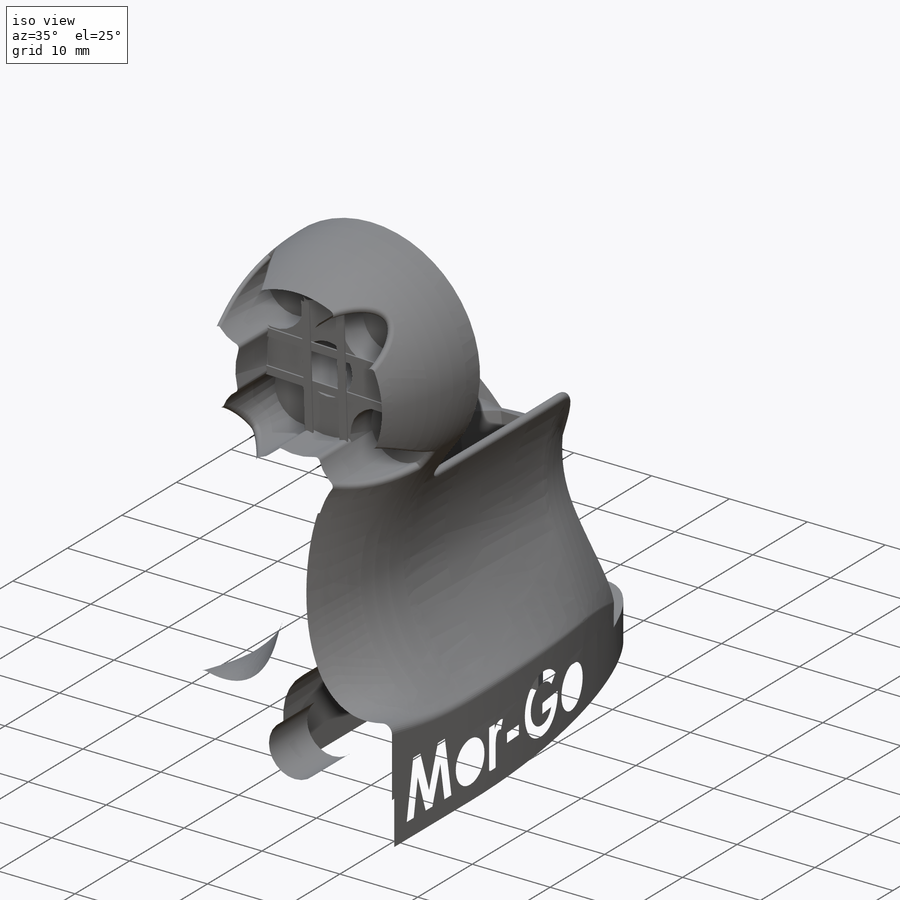
[diagram: iso view]
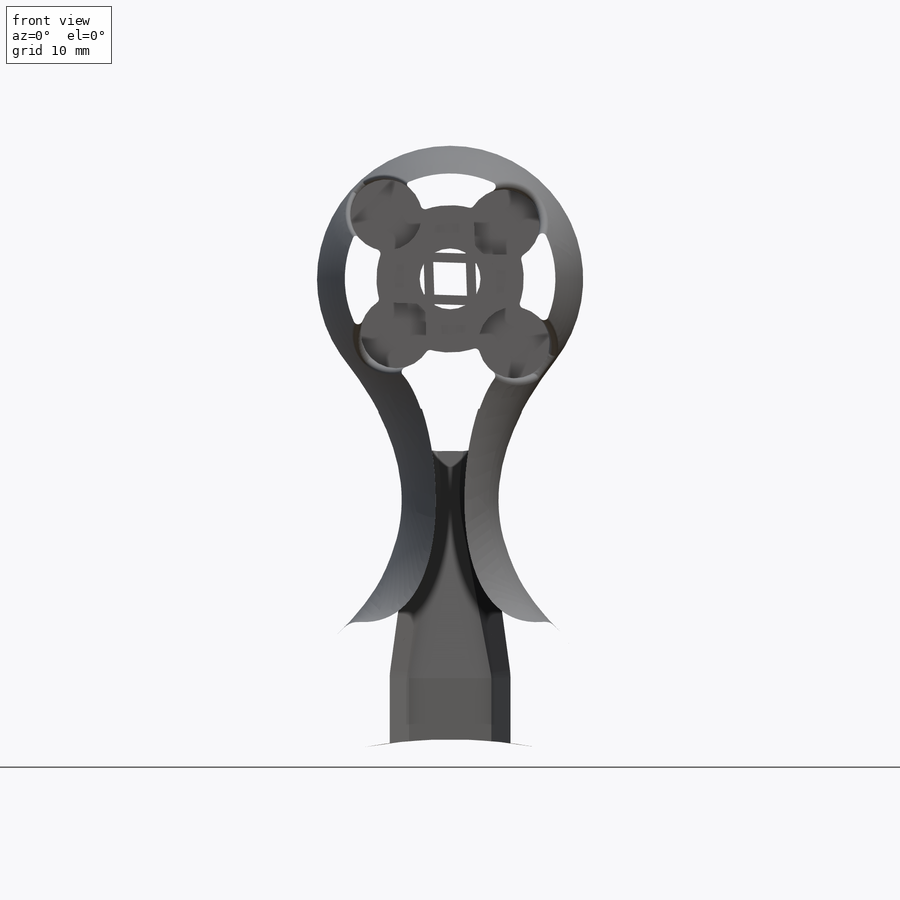
[diagram: front view]
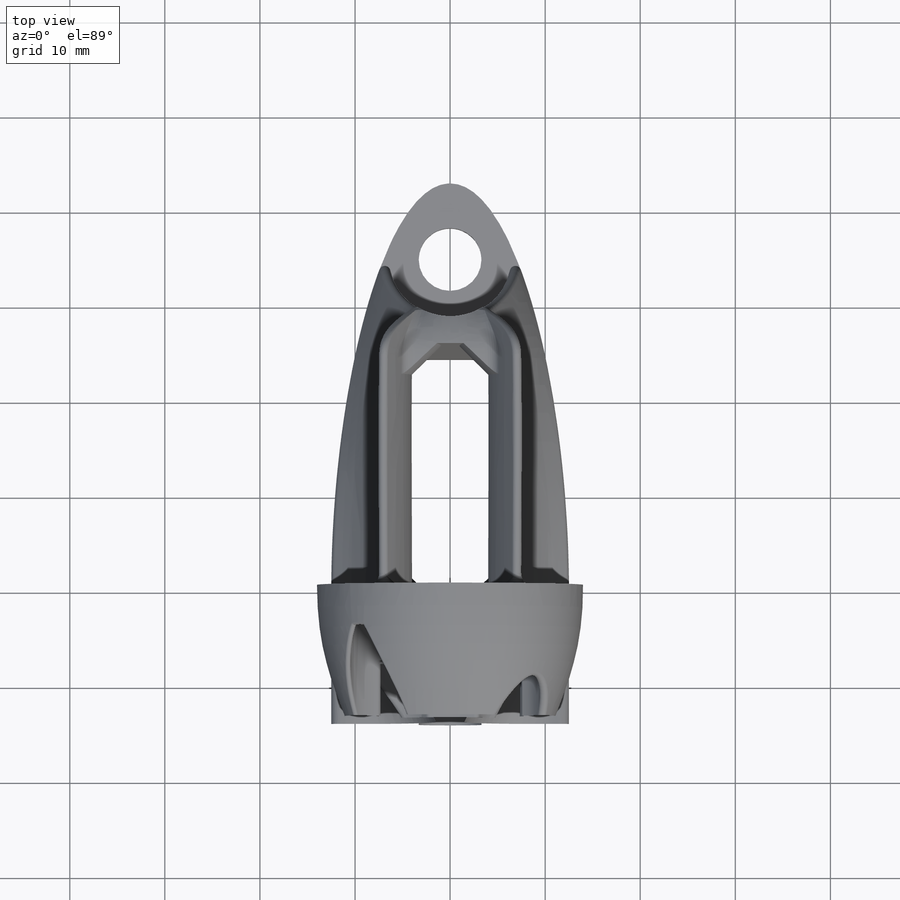
[diagram: top view]
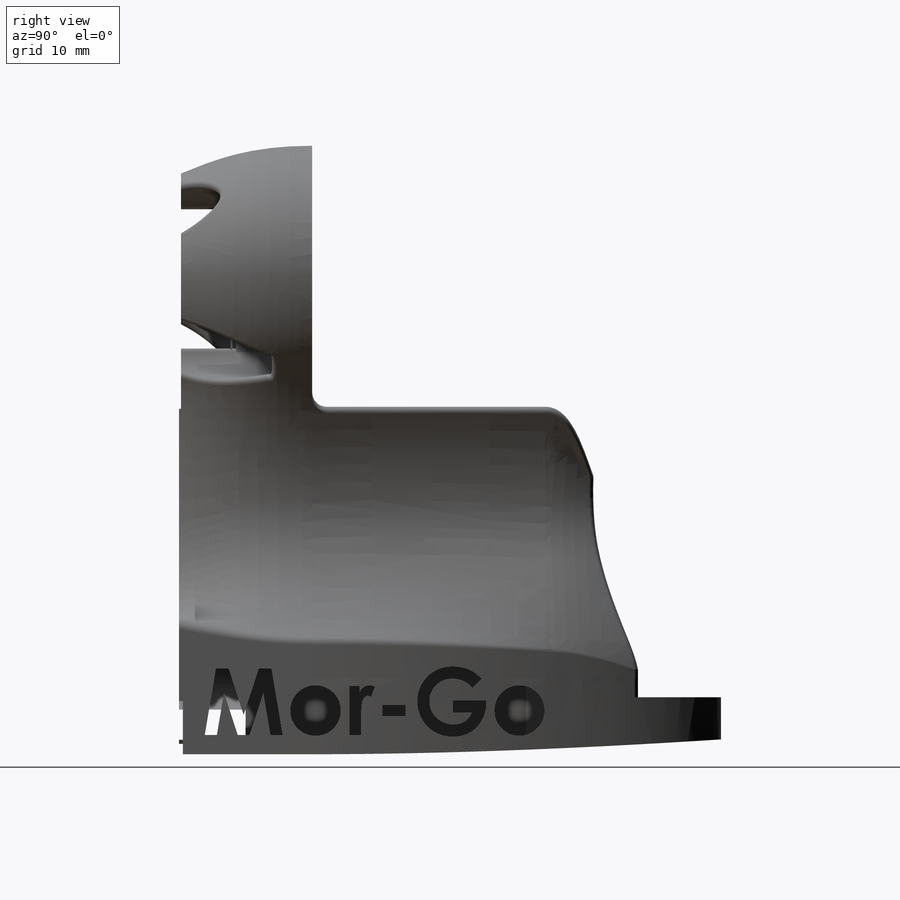
[diagram: right view]
SOLIDWORKS PART (.sldprt)
format: sldprt  version: not decoded by parser v0  size: 2,762,752 bytes
history: native  units: mm
features: sketch x32, cut_extrude x10, fillet x9, extrude x5, plane x4, sweep x4, mirror x3, surface_op x2, material x1, boolean_combine x1, chamfer x1, curve x1 (+15 scaffold rows collapsed)
feature tree (88):
  scaffold x15  (default folders/planes/origin — collapsed)
  material  "Material <not specified>"
  sketch  "Sketch1"  dims[c1.D1=28.0mm c1.D2=30.0mm c1.D5=~35.305089mm c1.D7=6.604mm c1.D10=80.0mm c2.D2=50.0mm c2.D3=25.0mm c2.D4=~10.71765mm c2.D5=~13.735526mm c3.D5=30.0deg c4.D5=10.0mm c4.D6=14.0mm c4.D8=42.0mm c4.D4=20.0mm c4.D9=20.0mm c5.D4=80.0deg]
  sketch  "Sketch2"  dims[c1.D2=3.0mm c1.D1=6.0mm c2.D2=18.0mm c2.D3=3.5mm]
  plane  "Plane1"  Offset=14mm
  sketch  "Sketch4"  dims[D1=22.0mm D4=75.2mm D2=3.0mm D3=5.0mm]
  sketch  "Sketch5"  dims[c1.D1=~3.373684mm c1.D2=~3.569905mm c1.D3=3.4mm c2.D1=19.0mm c2.D2=16.0mm c2.D3=16.0mm c3.D3=45.0deg c4.D3=~35.086547mm c5.D3=60.0deg c5.D4=19.0mm c6.D4=45.0deg]
  cut_extrude  "Cut-Extrude1"  Depth=4mm
  sketch  "Sketch6"  dims[D1=7.5mm]
  cut_extrude  "Cut-Extrude2"  Depth=0.2mm
  sketch  "Sketch7"  dims[D1=15.5mm]
  cut_extrude  "Cut-Extrude3"  Depth=8mm
  fillet  "Fillet1"  Radius=0.5mm
  fillet  "Fillet2"  Radius=0.3mm
  sketch  "Sketch8"  dims[D1=6.4mm]
  cut_extrude  "Cut-Extrude4"  [1 undecoded]
  sketch  "Sketch9"  dims[D1=6.604mm]
  cut_extrude  "Cut-Extrude5"  Depth=7mm
  sketch  "Sketch10"  dims[D1=12.7mm]
  cut_extrude  "Cut-Extrude6"  [1 undecoded]
  sketch  "Sketch11"  dims[c1.D1=~5.826221mm c2.D1=~0.287587deg c3.D1=57.0mm c3.D2=21.0mm c3.D3=14.0mm c3.D5=~5.274896mm c3.D4=5.0mm]
  extrude  "Boss-Extrude3"  [1 undecoded]
  sketch  "Sketch12"  dims[c1.D1=30.0mm c1.D4=30.0mm c1.D3=2.0mm c2.D4=1.0mm c2.D2=1.0mm]
  sketch  "Sketch13"  dims[D1=3.0mm]
  mirror  "Mirror3"
  boolean_combine  "Combine1"
  sketch  "Sketch17"  dims[D1=18.0mm]
  sketch  "Sketch18"  dims[D1=12.0mm]
  sketch  "Sketch40"  dims[c1.D1=1.5mm c1.D3=~1.500007mm c1.D2=14.0mm c2.D1=1.5mm]
  cut_extrude  "Cut-Extrude11"  Depth=1mm
  sketch  "Sketch38"  dims[D1=18.0mm]
  surface_op  "Surface-Extrude1"
  sketch  "3DSketch1"
  mirror  "Mirror4"
  plane  "Plane2"  Offset=2mm
  sketch  "3DSketch5"  dims[D1=~23.433763mm D2=~12.576075mm]
  mirror  "Mirror5"
  sketch  "Sketch26"
  fillet  "Fillet4"  Radius=1mm
  sketch  "Sketch27"  dims[c1.D1=6.604mm c1.D2=12.8mm c1.D3=49.0mm c1.D4=~10.221323mm c2.D4=60.0deg]
  cut_extrude  "Cut-Extrude7"  [1 undecoded]
  cut_extrude  "Cut-Extrude8"  [1 undecoded]
  sketch  "Sketch27<3>"  dims[D19=6.0mm]
  chamfer  "Chamfer1"  Distance=2mm Angle=45deg
  fillet  "Fillet11"  Radius=0.6mm
  fillet  "Fillet12"  Radius=0.6mm
  sketch  "3DSketch6"
  curve  "Split Line2"
  sketch  "Sketch35"  dims[D1=0.2mm]
  surface_op  "Surface-Extrude2"
  sketch  "Sketch30"  dims[D1=101.6mm]
  cut_extrude  "Cut-Extrude10"  [1 undecoded]
  fillet  "Fillet14"  Radius=1.5mm
  fillet  "Fillet16"  Radius=1.5mm
  fillet  "Fillet17"  Radius=2mm
  fillet  "Fillet18"  Radius=1mm
  sketch  "Sketch43"  dims[D1=4.0mm D2=6.0mm]
  sketch  "Sketch44"
  sweep  "Cut-Sweep1"
  sweep  "Folder2___EndTag___"
  sketch  "Sketch31"  dims[c1.D1=1.0mm c2.D1=0.2mm c2.D19=0.2mm c2.D5=1.0mm c2.D6=10.0mm c2.D7=5.0mm]
  sketch  "Sketch31<3>"  dims[D1=0.2mm D19=0.4mm D5=1.0mm D6=10.0mm D7=5.0mm]
  sketch  "Sketch32"
  extrude  "Boss-Extrude4"  Depth=0.2mm
  sketch  "Sketch42"
  extrude  "Boss-Extrude7"  Depth=0.4mm
  sweep  "text"
  sweep  "Folder1___EndTag___"
  plane  "Plane3"
  sketch  "Sketch34"
  extrude  "Boss-Extrude5"  Depth=0.5mm
  plane  "Plane4"
  sketch  "Sketch36"
  extrude  "Boss-Extrude6"  Depth=0.5mm
decode coverage: 43 of 68 modeling features carry decoded parameters
note: ~ marks probable driven/reference dimensions
note: 6 parameter values undecoded
summary: no parameter record found for 6 features; profile_refs inferred from adjacent sketches, not decoded
note: suppression state not decoded; provenance and decode notes live in map.json
